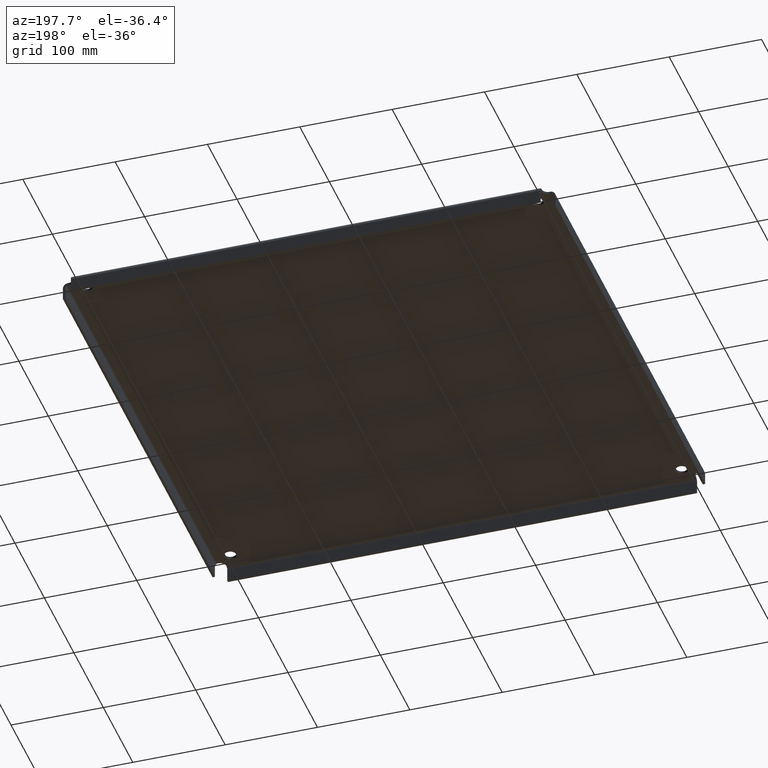
[diagram: clean part render]
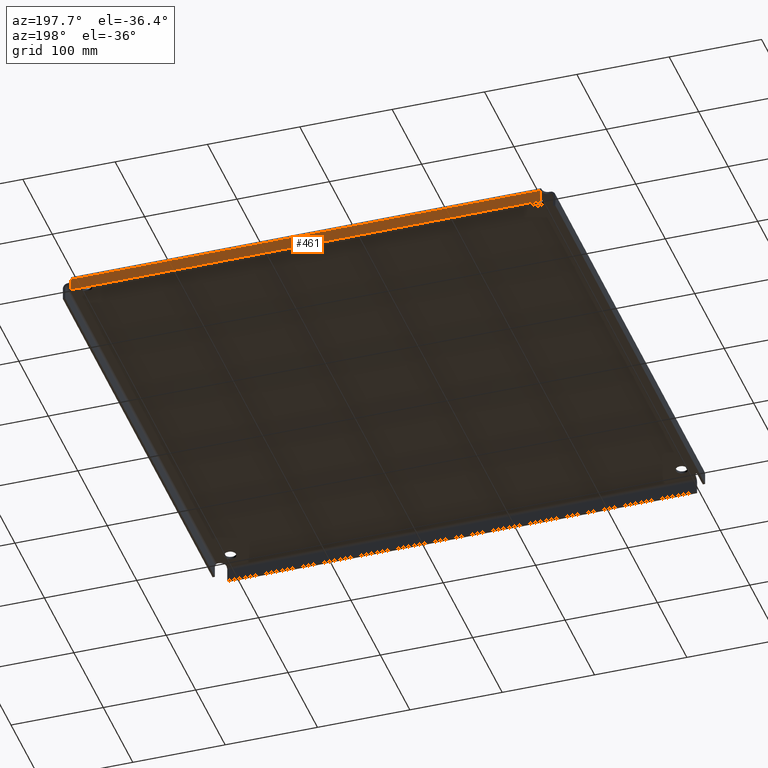
[diagram: same view with one face highlighted and labeled with its STEP entity id]
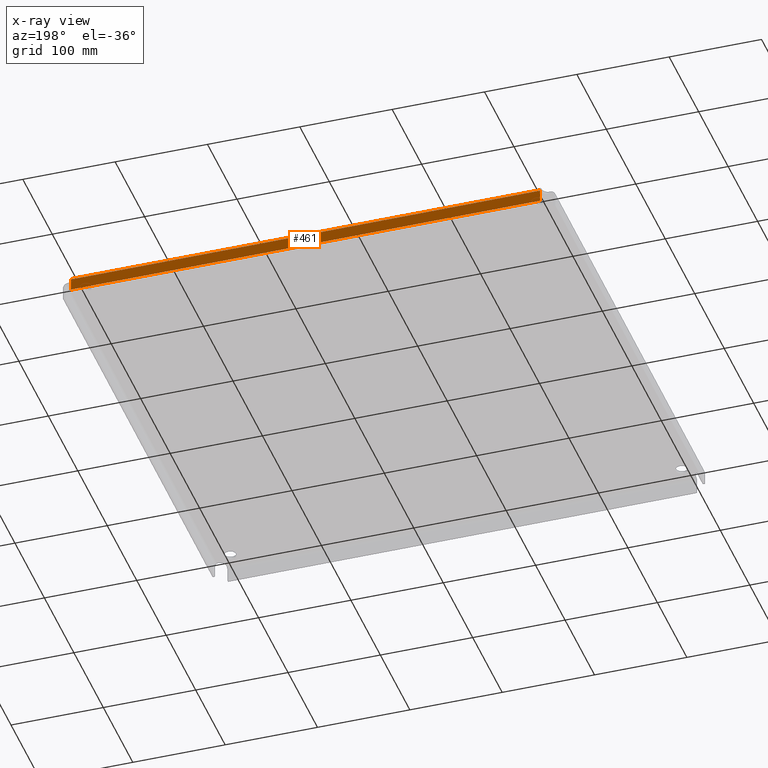
[diagram: x-ray of the same camera — body ghosted, the highlighted face saturated]
A machine part, auxiliary view. The second image highlights one B-rep face of the part: STEP entity #461.
The next image is the same camera in x-ray: the body ghosted, the highlighted face saturated — about 0% of this face is hidden behind the body in this view.
In plain terms, the highlighted planar face has unit normal (0, 1, 0).
Its self-contained STEP definition (entity closure, byte-faithful):
#46 = CARTESIAN_POINT ( 'NONE',  ( -23.81629661424700800, -24.11211278189821500, -29.89476460107778500 ) ) ;
#54 = VECTOR ( 'NONE', #55, 39.37007874015748100 ) ;
#55 = DIRECTION ( 'NONE',  ( 1.000000000000000000, -0.0000000000000000000, -0.0000000000000000000 ) ) ;
#67 = DIRECTION ( 'NONE',  ( -0.0000000000000000000, -0.0000000000000000000, 1.000000000000000000 ) ) ;
#93 = ORIENTED_EDGE ( 'NONE', *, *, #1465, .F. ) ;
#128 = EDGE_CURVE ( 'NONE', #1099, #788, #381, .T. ) ;
#171 = DIRECTION ( 'NONE',  ( -0.0000000000000000000, -0.0000000000000000000, 1.000000000000000000 ) ) ;
#193 = CARTESIAN_POINT ( 'NONE',  ( -23.31629661424701200, -24.11211278189821500, -29.37476460107778600 ) ) ;
#198 = EDGE_CURVE ( 'NONE', #679, #1099, #1246, .T. ) ;
#213 = CARTESIAN_POINT ( 'NONE',  ( -23.81629661424700800, -24.11211278189821500, -29.89476460107778500 ) ) ;
#289 = FACE_OUTER_BOUND ( 'NONE', #474, .T. ) ;
#332 = PLANE ( 'NONE',  #1004 ) ;
#381 = LINE ( 'NONE', #739, #54 ) ;
#461 = ADVANCED_FACE ( 'NONE', ( #289 ), #332, .T. ) ;
#474 = EDGE_LOOP ( 'NONE', ( #975, #1026, #93, #1193 ) ) ;
#657 = VERTEX_POINT ( 'NONE', #1389 ) ;
#679 = VERTEX_POINT ( 'NONE', #1165 ) ;
#685 = DIRECTION ( 'NONE',  ( 0.0000000000000000000, -0.0000000000000000000, 1.000000000000000000 ) ) ;
#739 = CARTESIAN_POINT ( 'NONE',  ( -23.81629661424700800, -24.11211278189821500, -29.37476460107778600 ) ) ;
#744 = LINE ( 'NONE', #46, #1221 ) ;
#763 = LINE ( 'NONE', #865, #1343 ) ;
#788 = VERTEX_POINT ( 'NONE', #1183 ) ;
#865 = CARTESIAN_POINT ( 'NONE',  ( -3.316296614246995400, -24.11211278189820800, -29.89476460107778500 ) ) ;
#936 = VECTOR ( 'NONE', #171, 39.37007874015748100 ) ;
#975 = ORIENTED_EDGE ( 'NONE', *, *, #198, .T. ) ;
#1004 = AXIS2_PLACEMENT_3D ( 'NONE', #213, #1377, #685 ) ;
#1026 = ORIENTED_EDGE ( 'NONE', *, *, #128, .T. ) ;
#1099 = VERTEX_POINT ( 'NONE', #193 ) ;
#1165 = CARTESIAN_POINT ( 'NONE',  ( -23.31629661424701200, -24.11211278189821500, -29.89476460107778500 ) ) ;
#1183 = CARTESIAN_POINT ( 'NONE',  ( -3.316296614246995400, -24.11211278189820800, -29.37476460107778600 ) ) ;
#1193 = ORIENTED_EDGE ( 'NONE', *, *, #1320, .T. ) ;
#1221 = VECTOR ( 'NONE', #1419, 39.37007874015748100 ) ;
#1246 = LINE ( 'NONE', #1327, #936 ) ;
#1320 = EDGE_CURVE ( 'NONE', #657, #679, #744, .T. ) ;
#1327 = CARTESIAN_POINT ( 'NONE',  ( -23.31629661424701200, -24.11211278189821500, -29.89476460107778500 ) ) ;
#1343 = VECTOR ( 'NONE', #67, 39.37007874015748100 ) ;
#1377 = DIRECTION ( 'NONE',  ( 0.0000000000000000000, 1.000000000000000000, 0.0000000000000000000 ) ) ;
#1389 = CARTESIAN_POINT ( 'NONE',  ( -3.316296614246995400, -24.11211278189820800, -29.89476460107778500 ) ) ;
#1419 = DIRECTION ( 'NONE',  ( -1.000000000000000000, -0.0000000000000000000, -0.0000000000000000000 ) ) ;
#1465 = EDGE_CURVE ( 'NONE', #657, #788, #763, .T. ) ;